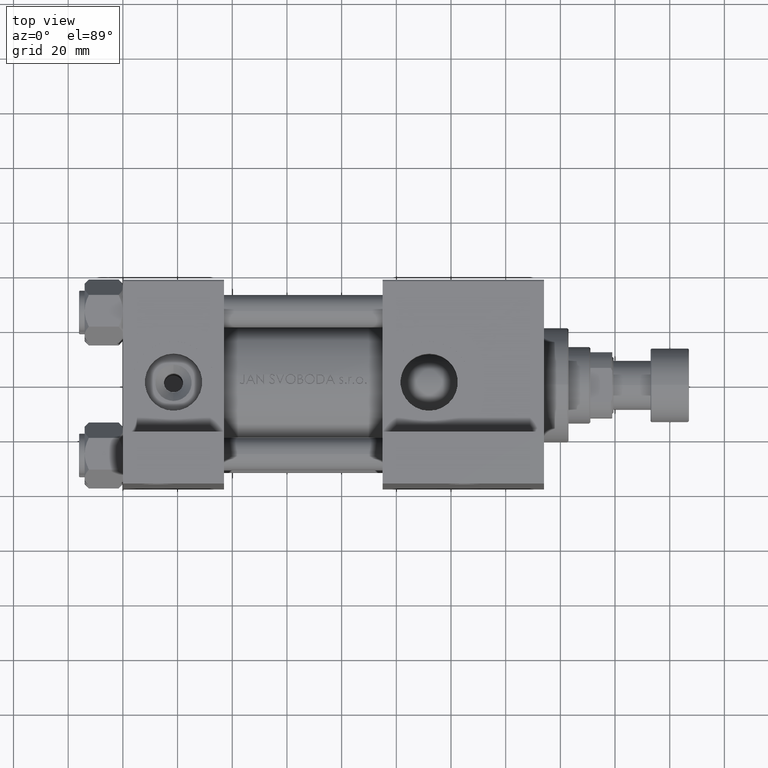
[diagram: clean part render]
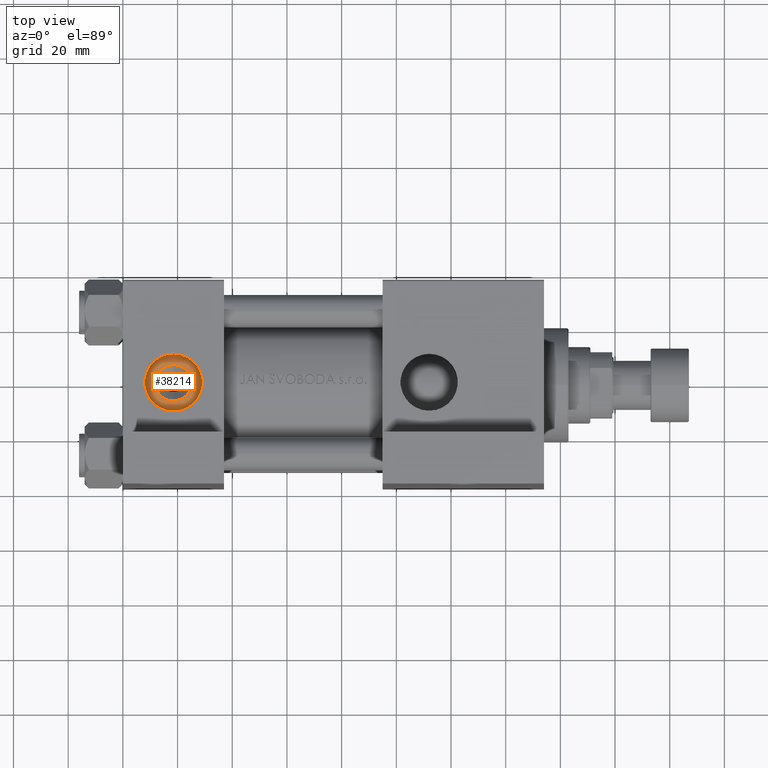
[diagram: same view with one face highlighted and labeled with its STEP entity id]
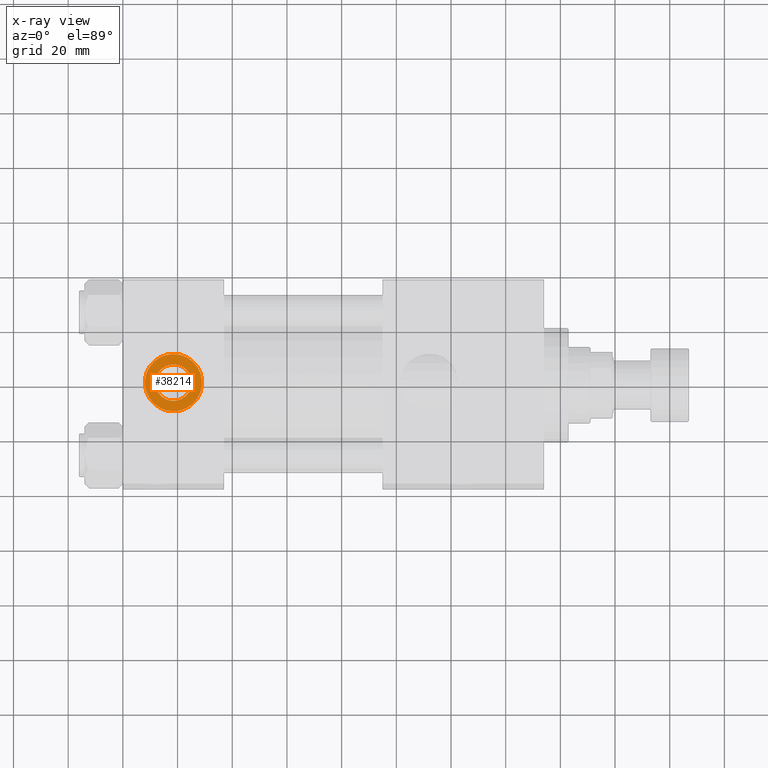
[diagram: x-ray of the same camera — body ghosted, the highlighted face saturated]
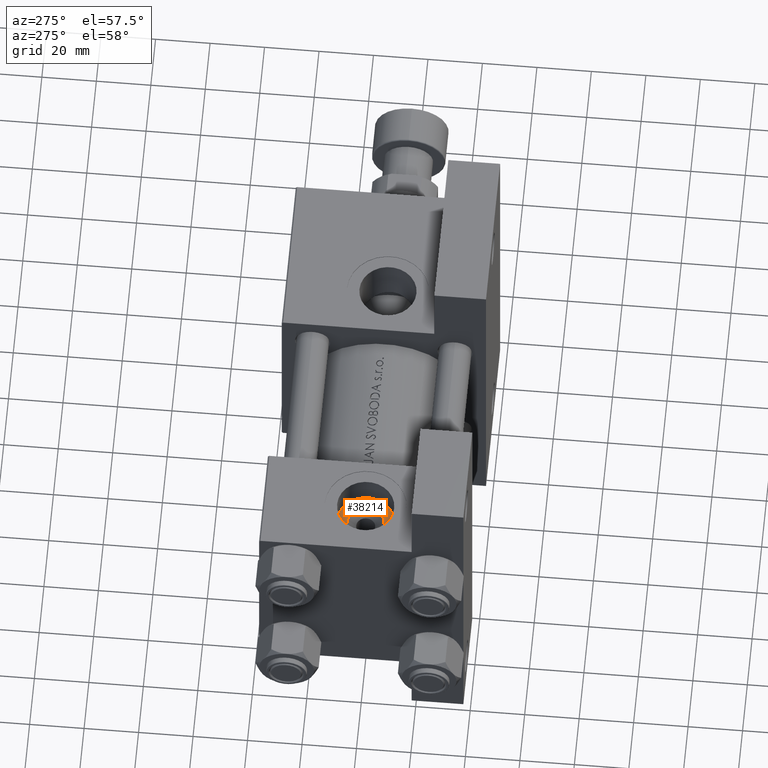
[diagram: same view with one face highlighted and labeled with its STEP entity id]
A machine part, top view. The second image highlights one B-rep face of the part: STEP entity #38214.
The next image is the same camera in x-ray: the body ghosted, the highlighted face saturated — about 0% of this face is hidden behind the body in this view.
A second angle (auxiliary view) of the same face is appended — the face is thin or edge-on in the first view.
In plain terms, the highlighted planar face has unit normal (0, -0, 1).
Its self-contained STEP definition (entity closure, byte-faithful):
#1989 = ORIENTED_EDGE ( 'NONE', *, *, #18888, .T. ) ;
#3280 = DIRECTION ( 'NONE',  ( 0.000000000000000000, 8.673617379884036705E-17, -1.000000000000000000 ) ) ;
#3316 = VERTEX_POINT ( 'NONE', #24918 ) ;
#4019 = CARTESIAN_POINT ( 'NONE',  ( 18.50000000000000000, -26.60000000000000497, -2.524022657546255111E-15 ) ) ;
#4222 = VERTEX_POINT ( 'NONE', #17991 ) ;
#7293 = ORIENTED_EDGE ( 'NONE', *, *, #17185, .T. ) ;
#7593 = VERTEX_POINT ( 'NONE', #14462 ) ;
#7796 = FACE_BOUND ( 'NONE', #43206, .T. ) ;
#8166 = DIRECTION ( 'NONE',  ( 0.000000000000000000, 0.000000000000000000, -1.000000000000000000 ) ) ;
#8530 = AXIS2_PLACEMENT_3D ( 'NONE', #11509, #23144, #38545 ) ;
#8808 = CARTESIAN_POINT ( 'NONE',  ( 18.50000000000000000, -26.60000000000000497, -6.640000000000061853 ) ) ;
#8894 = VERTEX_POINT ( 'NONE', #8808 ) ;
#9370 = AXIS2_PLACEMENT_3D ( 'NONE', #23340, #20060, #8166 ) ;
#11509 = CARTESIAN_POINT ( 'NONE',  ( 18.50000000000000000, -26.60000000000000497, -2.524022657546255111E-15 ) ) ;
#11984 = CIRCLE ( 'NONE', #13590, 6.640000000000062741 ) ;
#12361 = EDGE_LOOP ( 'NONE', ( #30463, #1989 ) ) ;
#13590 = AXIS2_PLACEMENT_3D ( 'NONE', #26050, #41467, #22761 ) ;
#14462 = CARTESIAN_POINT ( 'NONE',  ( 18.50000000000000000, -26.60000000000000497, 10.47999999999999865 ) ) ;
#15367 = EDGE_CURVE ( 'NONE', #3316, #7593, #19829, .T. ) ;
#17185 = EDGE_CURVE ( 'NONE', #8894, #4222, #37613, .T. ) ;
#17991 = CARTESIAN_POINT ( 'NONE',  ( 18.50000000000000000, -26.60000000000000497, 6.640000000000064517 ) ) ;
#18888 = EDGE_CURVE ( 'NONE', #7593, #3316, #35960, .T. ) ;
#19829 = CIRCLE ( 'NONE', #8530, 10.48000000000000043 ) ;
#20060 = DIRECTION ( 'NONE',  ( -0.000000000000000000, 1.000000000000000000, 8.673617379884036705E-17 ) ) ;
#22250 = AXIS2_PLACEMENT_3D ( 'NONE', #46663, #30486, #45670 ) ;
#22761 = DIRECTION ( 'NONE',  ( 0.000000000000000000, 0.000000000000000000, -1.000000000000000000 ) ) ;
#23144 = DIRECTION ( 'NONE',  ( 0.000000000000000000, -1.000000000000000000, -8.673617379884036705E-17 ) ) ;
#23340 = CARTESIAN_POINT ( 'NONE',  ( 18.50000000000000000, -26.60000000000000497, 0.000000000000000000 ) ) ;
#24918 = CARTESIAN_POINT ( 'NONE',  ( 18.50000000000000000, -26.60000000000000497, -10.48000000000000220 ) ) ;
#26050 = CARTESIAN_POINT ( 'NONE',  ( 18.50000000000000000, -26.60000000000000497, 0.000000000000000000 ) ) ;
#26270 = FACE_OUTER_BOUND ( 'NONE', #12361, .T. ) ;
#30463 = ORIENTED_EDGE ( 'NONE', *, *, #15367, .T. ) ;
#30486 = DIRECTION ( 'NONE',  ( 0.000000000000000000, -1.000000000000000000, -8.673617379884036705E-17 ) ) ;
#31182 = AXIS2_PLACEMENT_3D ( 'NONE', #4019, #34843, #3280 ) ;
#34843 = DIRECTION ( 'NONE',  ( 0.000000000000000000, -1.000000000000000000, -8.673617379884036705E-17 ) ) ;
#35960 = CIRCLE ( 'NONE', #22250, 10.48000000000000043 ) ;
#37613 = CIRCLE ( 'NONE', #9370, 6.640000000000062741 ) ;
#38214 = ADVANCED_FACE ( 'NONE', ( #7796, #26270 ), #42431, .T. ) ;
#38545 = DIRECTION ( 'NONE',  ( 0.000000000000000000, 0.000000000000000000, -1.000000000000000000 ) ) ;
#40527 = ORIENTED_EDGE ( 'NONE', *, *, #42587, .T. ) ;
#41467 = DIRECTION ( 'NONE',  ( -0.000000000000000000, 1.000000000000000000, 8.673617379884036705E-17 ) ) ;
#42431 = PLANE ( 'NONE',  #31182 ) ;
#42587 = EDGE_CURVE ( 'NONE', #4222, #8894, #11984, .T. ) ;
#43206 = EDGE_LOOP ( 'NONE', ( #7293, #40527 ) ) ;
#45670 = DIRECTION ( 'NONE',  ( 0.000000000000000000, 0.000000000000000000, -1.000000000000000000 ) ) ;
#46663 = CARTESIAN_POINT ( 'NONE',  ( 18.50000000000000000, -26.60000000000000497, -2.524022657546255111E-15 ) ) ;